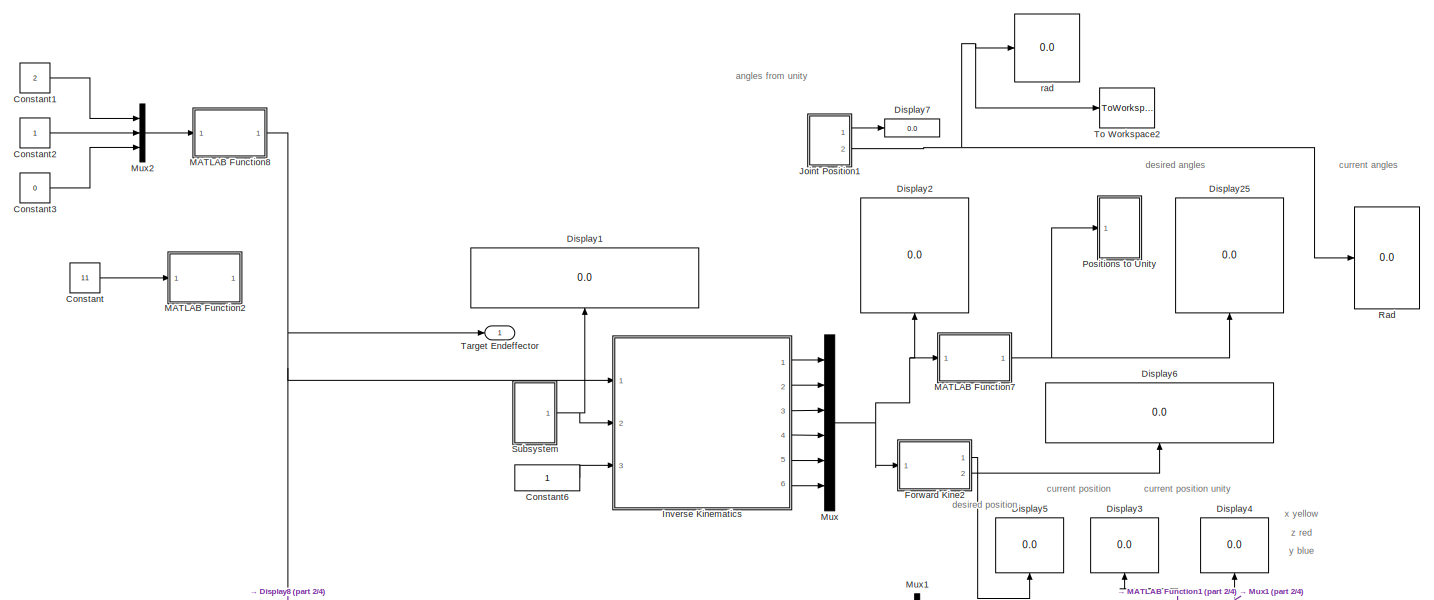
[diagram: root canvas - part 1/4, full width, top band]
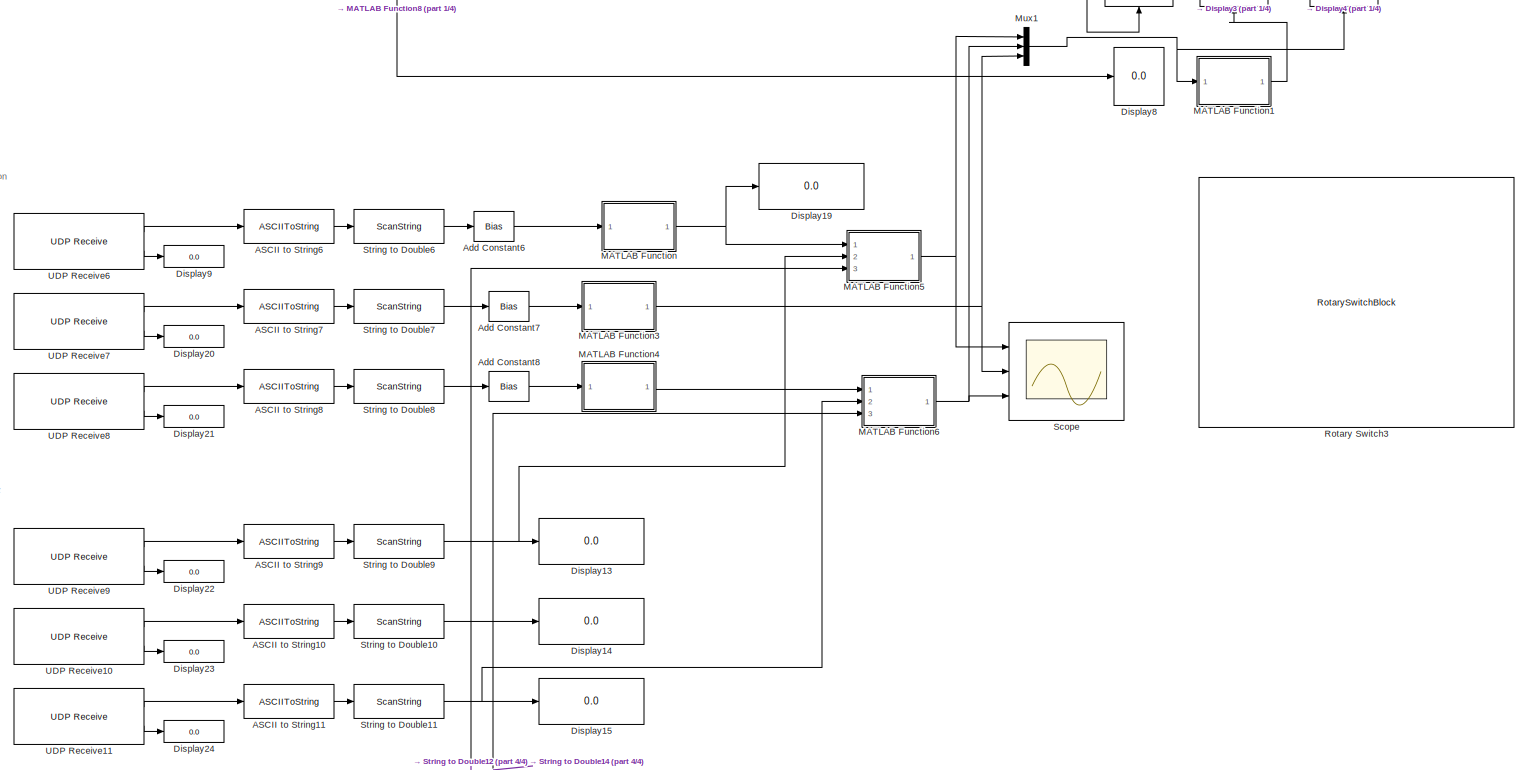
[diagram: root canvas - part 2/4, full width, middle band]
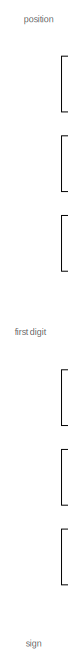
[diagram: root canvas - part 3/4, middle left region]
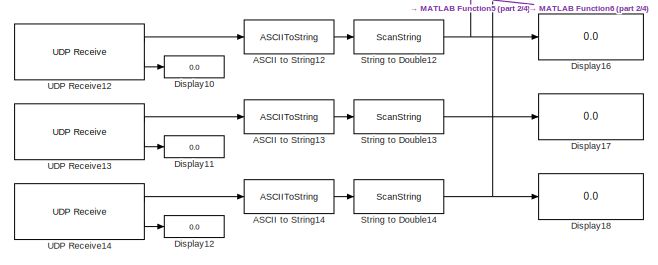
[diagram: root canvas - part 4/4, bottom left region]
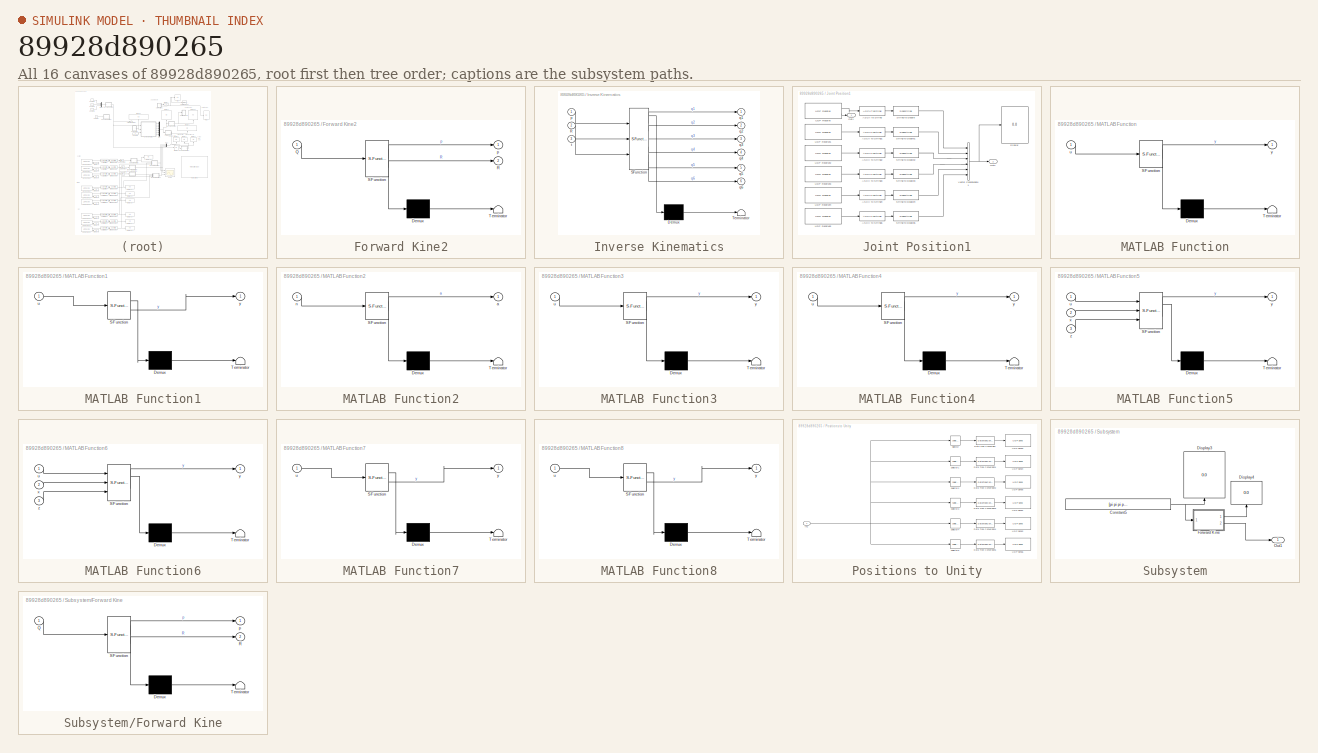
[diagram: thumbnail index - all 16 canvases of the model, root first then tree order]
MODEL slx_89928d890265
KIND model
CONFIG AbsTol = auto
CONFIG EnableMultiTasking = off
CONFIG FixedStep = auto
CONFIG MaxStep = auto
CONFIG MinStep = auto
CONFIG RelTol = 1e-3
CONFIG SampleTimeConstraint = Unconstrained
CONFIG Solver = VariableStepAuto
CONFIG SolverName = VariableStepAuto
CONFIG StartTime = 0.0
CONFIG StopTime = inf
BLOCK [ASCIIToString] ASCII to String10
BLOCK [ASCIIToString] ASCII to String11
BLOCK [ASCIIToString] ASCII to String12
BLOCK [ASCIIToString] ASCII to String13
BLOCK [ASCIIToString] ASCII to String14
BLOCK [ASCIIToString] ASCII to String6
BLOCK [ASCIIToString] ASCII to String7
BLOCK [ASCIIToString] ASCII to String8
BLOCK [ASCIIToString] ASCII to String9
BLOCK [Bias] Add Constant6
  SaturateOnIntegerOverflow = off
BLOCK [Bias] Add Constant7
  SaturateOnIntegerOverflow = off
BLOCK [Bias] Add Constant8
  SaturateOnIntegerOverflow = off
BLOCK [Constant] Constant
  Commented = on
  Value = 11
BLOCK [Constant] Constant1
  Value = 2
BLOCK [Constant] Constant2
BLOCK [Constant] Constant3
  Value = 0
BLOCK [Constant] Constant6
BLOCK [Display] Display1
  Decimation = 1
  Ports = [1]
BLOCK [Display] Display10
  Decimation = 1
  Format = bank
  Ports = [1]
BLOCK [Display] Display11
  Decimation = 1
  Format = bank
  Ports = [1]
BLOCK [Display] Display12
  Decimation = 1
  Format = bank
  Ports = [1]
BLOCK [Display] Display13
  Decimation = 1
  Ports = [1]
BLOCK [Display] Display14
  Decimation = 1
  Ports = [1]
BLOCK [Display] Display15
  Decimation = 1
  Ports = [1]
BLOCK [Display] Display16
  Decimation = 1
  Ports = [1]
BLOCK [Display] Display17
  Decimation = 1
  Ports = [1]
BLOCK [Display] Display18
  Decimation = 1
  Ports = [1]
BLOCK [Display] Display19
  Decimation = 1
  Ports = [1]
BLOCK [Display] Display2
  Decimation = 1
  Ports = [1]
BLOCK [Display] Display20
  Decimation = 1
  Format = bank
  Ports = [1]
BLOCK [Display] Display21
  Decimation = 1
  Format = bank
  Ports = [1]
BLOCK [Display] Display22
  Decimation = 1
  Format = bank
  Ports = [1]
BLOCK [Display] Display23
  Decimation = 1
  Format = bank
  Ports = [1]
BLOCK [Display] Display24
  Decimation = 1
  Format = bank
  Ports = [1]
BLOCK [Display] Display25
  Decimation = 1
  Ports = [1]
BLOCK [Display] Display3
  Decimation = 1
  Ports = [1]
BLOCK [Display] Display4
  Decimation = 1
  Ports = [1]
BLOCK [Display] Display5
  Decimation = 1
  Ports = [1]
BLOCK [Display] Display6
  Decimation = 1
  Ports = [1]
BLOCK [Display] Display7
  Decimation = 1
  Ports = [1]
BLOCK [Display] Display8
  Decimation = 1
  Ports = [1]
BLOCK [Display] Display9
  Decimation = 1
  Format = bank
  Ports = [1]
BLOCK [SubSystem] Forward Kine2
  ErrorFcn = Stateflow.Translate.translate
  PermitHierarchicalResolution = ExplicitOnly
  Ports = [1, 2]
  RequestExecContextInheritance = off
  SFBlockType = MATLAB Function
  TreatAsAtomicUnit = on
BLOCK [Demux] Forward Kine2/ Demux 
  Outputs = 1
  Ports = [1, 1]
BLOCK [S-Function] Forward Kine2/ SFunction 
  EnableBusSupport = on
  FunctionName = sf_sfun
  PortCounts = [1 3]
  Ports = [1, 3]
  SFcnIsStateOwnerBlock = off
  SFunctionDeploymentMode = off
  Tag = Stateflow S-Function InverseKinematics_DirectionalController2018b 1
BLOCK [Terminator] Forward Kine2/ Terminator 
BLOCK [Inport] Forward Kine2/Q
BLOCK [Outport] Forward Kine2/R
  Port = 2
BLOCK [Outport] Forward Kine2/p
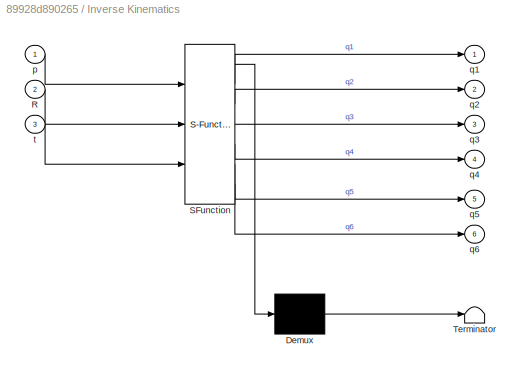
BLOCK [SubSystem] Inverse Kinematics
  ErrorFcn = Stateflow.Translate.translate
  PermitHierarchicalResolution = ExplicitOnly
  Ports = [3, 6]
  RequestExecContextInheritance = off
  SFBlockType = MATLAB Function
  TreatAsAtomicUnit = on
BLOCK [Demux] Inverse Kinematics/ Demux 
  Outputs = 1
  Ports = [1, 1]
BLOCK [S-Function] Inverse Kinematics/ SFunction 
  EnableBusSupport = on
  FunctionName = sf_sfun
  PortCounts = [3 7]
  Ports = [3, 7]
  SFcnIsStateOwnerBlock = off
  SFunctionDeploymentMode = off
  Tag = Stateflow S-Function InverseKinematics_DirectionalController2018b 7
BLOCK [Terminator] Inverse Kinematics/ Terminator 
BLOCK [Inport] Inverse Kinematics/R
  Port = 2
BLOCK [Inport] Inverse Kinematics/p
BLOCK [Outport] Inverse Kinematics/q1
  VectorParamsAs1DForOutWhenUnconnected = off
BLOCK [Outport] Inverse Kinematics/q2
  Port = 2
  VectorParamsAs1DForOutWhenUnconnected = off
BLOCK [Outport] Inverse Kinematics/q3
  Port = 3
  VectorParamsAs1DForOutWhenUnconnected = off
BLOCK [Outport] Inverse Kinematics/q4
  Port = 4
  VectorParamsAs1DForOutWhenUnconnected = off
BLOCK [Outport] Inverse Kinematics/q5
  Port = 5
  VectorParamsAs1DForOutWhenUnconnected = off
BLOCK [Outport] Inverse Kinematics/q6
  Port = 6
  VectorParamsAs1DForOutWhenUnconnected = off
BLOCK [Inport] Inverse Kinematics/t
  Port = 3
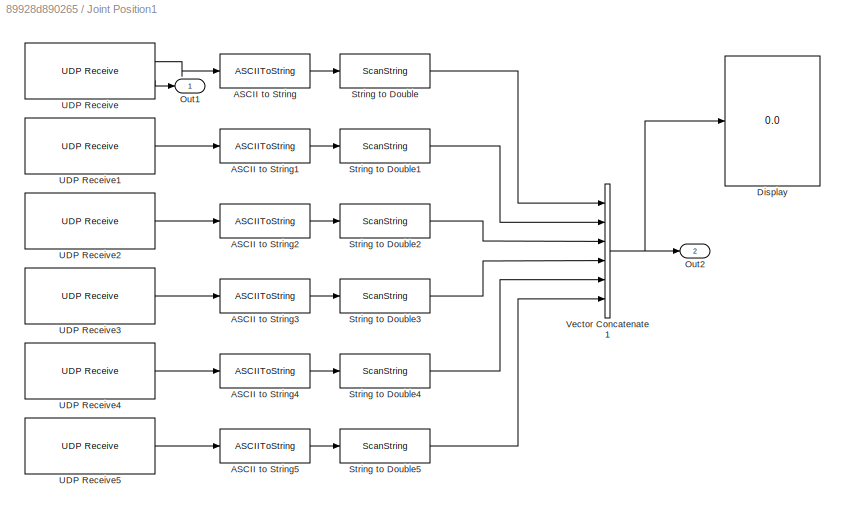
BLOCK [SubSystem] Joint Position1
  Ports = [0, 2]
  RequestExecContextInheritance = off
BLOCK [ASCIIToString] Joint Position1/ASCII to String
BLOCK [ASCIIToString] Joint Position1/ASCII to String1
BLOCK [ASCIIToString] Joint Position1/ASCII to String2
BLOCK [ASCIIToString] Joint Position1/ASCII to String3
BLOCK [ASCIIToString] Joint Position1/ASCII to String4
BLOCK [ASCIIToString] Joint Position1/ASCII to String5
BLOCK [Display] Joint Position1/Display
  Decimation = 1
  Ports = [1]
BLOCK [Outport] Joint Position1/Out1
BLOCK [Outport] Joint Position1/Out2
  Port = 2
BLOCK [ScanString] Joint Position1/String to Double
  Format = "%lf"
  Ports = [1, 1]
BLOCK [ScanString] Joint Position1/String to Double1
  Format = "%lf"
  Ports = [1, 1]
BLOCK [ScanString] Joint Position1/String to Double2
  Format = "%lf"
  Ports = [1, 1]
BLOCK [ScanString] Joint Position1/String to Double3
  Format = "%lf"
  Ports = [1, 1]
BLOCK [ScanString] Joint Position1/String to Double4
  Format = "%lf"
  Ports = [1, 1]
BLOCK [ScanString] Joint Position1/String to Double5
  Format = "%lf"
  Ports = [1, 1]
BLOCK [Reference] Joint Position1/UDP Receive  REF=instrumentlib/UDP Receive
  Ports = [0, 2]
  SourceBlock = instrumentlib/UDP Receive
  SourceProductBaseCode = IC
  SourceType = UDP Receive
BLOCK [Reference] Joint Position1/UDP Receive1  REF=instrumentlib/UDP Receive
  Ports = [0, 1]
  SourceBlock = instrumentlib/UDP Receive
  SourceProductBaseCode = IC
  SourceType = UDP Receive
BLOCK [Reference] Joint Position1/UDP Receive2  REF=instrumentlib/UDP Receive
  Ports = [0, 1]
  SourceBlock = instrumentlib/UDP Receive
  SourceProductBaseCode = IC
  SourceType = UDP Receive
BLOCK [Reference] Joint Position1/UDP Receive3  REF=instrumentlib/UDP Receive
  Ports = [0, 1]
  SourceBlock = instrumentlib/UDP Receive
  SourceProductBaseCode = IC
  SourceType = UDP Receive
BLOCK [Reference] Joint Position1/UDP Receive4  REF=instrumentlib/UDP Receive
  Ports = [0, 1]
  SourceBlock = instrumentlib/UDP Receive
  SourceProductBaseCode = IC
  SourceType = UDP Receive
BLOCK [Reference] Joint Position1/UDP Receive5  REF=instrumentlib/UDP Receive
  Ports = [0, 1]
  SourceBlock = instrumentlib/UDP Receive
  SourceProductBaseCode = IC
  SourceType = UDP Receive
BLOCK [Concatenate] Joint Position1/Vector Concatenate1
  NumInputs = 6
  Ports = [6, 1]
BLOCK [SubSystem] MATLAB Function
  ErrorFcn = Stateflow.Translate.translate
  PermitHierarchicalResolution = ExplicitOnly
  Ports = [1, 1]
  RequestExecContextInheritance = off
  SFBlockType = MATLAB Function
  TreatAsAtomicUnit = on
BLOCK [Demux] MATLAB Function/ Demux 
  Outputs = 1
  Ports = [1, 1]
BLOCK [S-Function] MATLAB Function/ SFunction 
  EnableBusSupport = on
  FunctionName = sf_sfun
  PortCounts = [1 2]
  Ports = [1, 2]
  SFcnIsStateOwnerBlock = off
  SFunctionDeploymentMode = off
  Tag = Stateflow S-Function InverseKinematics_DirectionalController2018b 5
BLOCK [Terminator] MATLAB Function/ Terminator 
BLOCK [Inport] MATLAB Function/u
BLOCK [Outport] MATLAB Function/y
BLOCK [SubSystem] MATLAB Function1
  ErrorFcn = Stateflow.Translate.translate
  PermitHierarchicalResolution = ExplicitOnly
  Ports = [1, 1]
  RequestExecContextInheritance = off
  SFBlockType = MATLAB Function
  TreatAsAtomicUnit = on
BLOCK [Demux] MATLAB Function1/ Demux 
  Outputs = 1
  Ports = [1, 1]
BLOCK [S-Function] MATLAB Function1/ SFunction 
  EnableBusSupport = on
  FunctionName = sf_sfun
  PortCounts = [1 2]
  Ports = [1, 2]
  SFcnIsStateOwnerBlock = off
  SFunctionDeploymentMode = off
  Tag = Stateflow S-Function InverseKinematics_DirectionalController2018b 4
BLOCK [Terminator] MATLAB Function1/ Terminator 
BLOCK [Inport] MATLAB Function1/u
BLOCK [Outport] MATLAB Function1/y
BLOCK [SubSystem] MATLAB Function2
  Commented = on
  ErrorFcn = Stateflow.Translate.translate
  PermitHierarchicalResolution = ExplicitOnly
  Ports = [1, 1]
  RequestExecContextInheritance = off
  SFBlockType = MATLAB Function
  TreatAsAtomicUnit = on
BLOCK [Demux] MATLAB Function2/ Demux 
  Outputs = 1
  Ports = [1, 1]
BLOCK [S-Function] MATLAB Function2/ SFunction 
  EnableBusSupport = on
  FunctionName = sf_sfun
  PortCounts = [1 2]
  Ports = [1, 2]
  SFcnIsStateOwnerBlock = off
  SFunctionDeploymentMode = off
  Tag = Stateflow S-Function 3
BLOCK [Terminator] MATLAB Function2/ Terminator 
BLOCK [Outport] MATLAB Function2/a
BLOCK [Inport] MATLAB Function2/n
BLOCK [SubSystem] MATLAB Function3
  ErrorFcn = Stateflow.Translate.translate
  PermitHierarchicalResolution = ExplicitOnly
  Ports = [1, 1]
  RequestExecContextInheritance = off
  SFBlockType = MATLAB Function
  TreatAsAtomicUnit = on
BLOCK [Demux] MATLAB Function3/ Demux 
  Outputs = 1
  Ports = [1, 1]
BLOCK [S-Function] MATLAB Function3/ SFunction 
  EnableBusSupport = on
  FunctionName = sf_sfun
  PortCounts = [1 2]
  Ports = [1, 2]
  SFcnIsStateOwnerBlock = off
  SFunctionDeploymentMode = off
  Tag = Stateflow S-Function InverseKinematics_DirectionalController2018b 6
BLOCK [Terminator] MATLAB Function3/ Terminator 
BLOCK [Inport] MATLAB Function3/u
BLOCK [Outport] MATLAB Function3/y
BLOCK [SubSystem] MATLAB Function4
  ErrorFcn = Stateflow.Translate.translate
  PermitHierarchicalResolution = ExplicitOnly
  Ports = [1, 1]
  RequestExecContextInheritance = off
  SFBlockType = MATLAB Function
  TreatAsAtomicUnit = on
BLOCK [Demux] MATLAB Function4/ Demux 
  Outputs = 1
  Ports = [1, 1]
BLOCK [S-Function] MATLAB Function4/ SFunction 
  EnableBusSupport = on
  FunctionName = sf_sfun
  PortCounts = [1 2]
  Ports = [1, 2]
  SFcnIsStateOwnerBlock = off
  SFunctionDeploymentMode = off
  Tag = Stateflow S-Function InverseKinematics_DirectionalController2018b 8
BLOCK [Terminator] MATLAB Function4/ Terminator 
BLOCK [Inport] MATLAB Function4/u
BLOCK [Outport] MATLAB Function4/y
BLOCK [SubSystem] MATLAB Function5
  ErrorFcn = Stateflow.Translate.translate
  PermitHierarchicalResolution = ExplicitOnly
  Ports = [3, 1]
  RequestExecContextInheritance = off
  SFBlockType = MATLAB Function
  TreatAsAtomicUnit = on
BLOCK [Demux] MATLAB Function5/ Demux 
  Outputs = 1
  Ports = [1, 1]
BLOCK [S-Function] MATLAB Function5/ SFunction 
  EnableBusSupport = on
  FunctionName = sf_sfun
  PortCounts = [3 2]
  Ports = [3, 2]
  SFcnIsStateOwnerBlock = off
  SFunctionDeploymentMode = off
  Tag = Stateflow S-Function InverseKinematics_DirectionalController2018b 9
BLOCK [Terminator] MATLAB Function5/ Terminator 
BLOCK [Inport] MATLAB Function5/u
BLOCK [Inport] MATLAB Function5/x
  Port = 2
BLOCK [Outport] MATLAB Function5/y
BLOCK [Inport] MATLAB Function5/z
  Port = 3
BLOCK [SubSystem] MATLAB Function6
  ErrorFcn = Stateflow.Translate.translate
  PermitHierarchicalResolution = ExplicitOnly
  Ports = [3, 1]
  RequestExecContextInheritance = off
  SFBlockType = MATLAB Function
  TreatAsAtomicUnit = on
BLOCK [Demux] MATLAB Function6/ Demux 
  Outputs = 1
  Ports = [1, 1]
BLOCK [S-Function] MATLAB Function6/ SFunction 
  EnableBusSupport = on
  FunctionName = sf_sfun
  PortCounts = [3 2]
  Ports = [3, 2]
  SFcnIsStateOwnerBlock = off
  SFunctionDeploymentMode = off
  Tag = Stateflow S-Function InverseKinematics_DirectionalController2018b 10
BLOCK [Terminator] MATLAB Function6/ Terminator 
BLOCK [Inport] MATLAB Function6/u
BLOCK [Inport] MATLAB Function6/x
  Port = 2
BLOCK [Outport] MATLAB Function6/y
BLOCK [Inport] MATLAB Function6/z
  Port = 3
BLOCK [SubSystem] MATLAB Function7
  ErrorFcn = Stateflow.Translate.translate
  PermitHierarchicalResolution = ExplicitOnly
  Ports = [1, 1]
  RequestExecContextInheritance = off
  SFBlockType = MATLAB Function
  TreatAsAtomicUnit = on
BLOCK [Demux] MATLAB Function7/ Demux 
  Outputs = 1
  Ports = [1, 1]
BLOCK [S-Function] MATLAB Function7/ SFunction 
  EnableBusSupport = on
  FunctionName = sf_sfun
  PortCounts = [1 2]
  Ports = [1, 2]
  SFcnIsStateOwnerBlock = off
  SFunctionDeploymentMode = off
  Tag = Stateflow S-Function InverseKinematics_DirectionalController2018b 11
BLOCK [Terminator] MATLAB Function7/ Terminator 
BLOCK [Inport] MATLAB Function7/u
BLOCK [Outport] MATLAB Function7/y
BLOCK [SubSystem] MATLAB Function8
  ErrorFcn = Stateflow.Translate.translate
  PermitHierarchicalResolution = ExplicitOnly
  Ports = [1, 1]
  RequestExecContextInheritance = off
  SFBlockType = MATLAB Function
  TreatAsAtomicUnit = on
BLOCK [Demux] MATLAB Function8/ Demux 
  Outputs = 1
  Ports = [1, 1]
BLOCK [S-Function] MATLAB Function8/ SFunction 
  EnableBusSupport = on
  FunctionName = sf_sfun
  PortCounts = [1 2]
  Ports = [1, 2]
  SFcnIsStateOwnerBlock = off
  SFunctionDeploymentMode = off
  Tag = Stateflow S-Function InverseKinematics_DirectionalController2018b 12
BLOCK [Terminator] MATLAB Function8/ Terminator 
BLOCK [Inport] MATLAB Function8/u
BLOCK [Outport] MATLAB Function8/y
BLOCK [Mux] Mux
  DisplayOption = signals
  Inputs = 6
  Ports = [6, 1]
BLOCK [Mux] Mux1
  DisplayOption = bar
  Inputs = 3
  Ports = [3, 1]
BLOCK [Mux] Mux2
  DisplayOption = bar
  Inputs = 3
  Ports = [3, 1]
BLOCK [SubSystem] Positions to Unity
  Ports = [1]
  RequestExecContextInheritance = off
BLOCK [DataTypeConversion] Positions to Unity/Data Type Conversion
  ConvertRealWorld = Stored Integer (SI)
  OutDataTypeStr = double
  RndMeth = Floor
  SaturateOnIntegerOverflow = off
BLOCK [DataTypeConversion] Positions to Unity/Data Type Conversion1
  ConvertRealWorld = Stored Integer (SI)
  OutDataTypeStr = double
  RndMeth = Floor
  SaturateOnIntegerOverflow = off
BLOCK [DataTypeConversion] Positions to Unity/Data Type Conversion2
  ConvertRealWorld = Stored Integer (SI)
  OutDataTypeStr = double
  RndMeth = Floor
  SaturateOnIntegerOverflow = off
BLOCK [DataTypeConversion] Positions to Unity/Data Type Conversion3
  ConvertRealWorld = Stored Integer (SI)
  OutDataTypeStr = double
  RndMeth = Floor
  SaturateOnIntegerOverflow = off
BLOCK [DataTypeConversion] Positions to Unity/Data Type Conversion4
  ConvertRealWorld = Stored Integer (SI)
  OutDataTypeStr = double
  RndMeth = Floor
  SaturateOnIntegerOverflow = off
BLOCK [DataTypeConversion] Positions to Unity/Data Type Conversion5
  ConvertRealWorld = Stored Integer (SI)
  OutDataTypeStr = double
  RndMeth = Floor
  SaturateOnIntegerOverflow = off
BLOCK [Inport] Positions to Unity/In1
BLOCK [Selector] Positions to Unity/Selector
  IndexOptions = Index vector (dialog)
  Indices = [1]
  InputPortWidth = 6
  OutputSizes = 1
  Ports = [1, 1]
BLOCK [Selector] Positions to Unity/Selector1
  IndexOptions = Index vector (dialog)
  Indices = [2]
  InputPortWidth = 6
  OutputSizes = 1
  Ports = [1, 1]
BLOCK [Selector] Positions to Unity/Selector2
  IndexOptions = Index vector (dialog)
  Indices = [3]
  InputPortWidth = 6
  OutputSizes = 1
  Ports = [1, 1]
BLOCK [Selector] Positions to Unity/Selector3
  IndexOptions = Index vector (dialog)
  Indices = [4]
  InputPortWidth = 6
  OutputSizes = 1
  Ports = [1, 1]
BLOCK [Selector] Positions to Unity/Selector4
  IndexOptions = Index vector (dialog)
  Indices = [5]
  InputPortWidth = 6
  OutputSizes = 1
  Ports = [1, 1]
BLOCK [Selector] Positions to Unity/Selector5
  IndexOptions = Index vector (dialog)
  Indices = [6]
  InputPortWidth = 6
  OutputSizes = 1
  Ports = [1, 1]
BLOCK [Reference] Positions to Unity/UDP Send1  REF=dspnetwork/UDP Send
  Ports = [1]
  SourceBlock = dspnetwork/UDP Send
  SourceProductBaseCode = SL
  SourceType = UDP Send
BLOCK [Reference] Positions to Unity/UDP Send2  REF=dspnetwork/UDP Send
  Ports = [1]
  SourceBlock = dspnetwork/UDP Send
  SourceProductBaseCode = SL
  SourceType = UDP Send
BLOCK [Reference] Positions to Unity/UDP Send3  REF=dspnetwork/UDP Send
  Ports = [1]
  SourceBlock = dspnetwork/UDP Send
  SourceProductBaseCode = SL
  SourceType = UDP Send
BLOCK [Reference] Positions to Unity/UDP Send4  REF=dspnetwork/UDP Send
  Ports = [1]
  SourceBlock = dspnetwork/UDP Send
  SourceProductBaseCode = SL
  SourceType = UDP Send
BLOCK [Reference] Positions to Unity/UDP Send5  REF=dspnetwork/UDP Send
  Ports = [1]
  SourceBlock = dspnetwork/UDP Send
  SourceProductBaseCode = SL
  SourceType = UDP Send
BLOCK [Reference] Positions to Unity/UDP Send6  REF=dspnetwork/UDP Send
  Ports = [1]
  SourceBlock = dspnetwork/UDP Send
  SourceProductBaseCode = SL
  SourceType = UDP Send
BLOCK [Display] Rad
  Decimation = 1
  Ports = [1]
BLOCK [RotarySwitchBlock] Rotary Switch3
  WebBlockId = 399
BLOCK [Scope] Scope
  Floating = off
  NumInputPorts = 3
  Ports = [3]
  ScopeSpecificationString = Simulink.scopes.TimeScopeBlockCfg('CurrentConfiguration', extmgr.ConfigurationSet(extmgr.Configuration('Core','General UI',true,'DisplayFullSourceName',true),extmgr.Configuration('Core','Source UI',true),extmgr.Configuration('Sources','WiredSimulink',true),extmgr.Configuration('Visuals','Time Domain',true,'SerializedDisplays',{struct('MinYLimReal','-6.13076','MaxYLimReal','6.79086','YLabelReal',''...<+1620ch>
BLOCK [ScanString] String to Double10
  Format = "%lf"
  Ports = [1, 1]
BLOCK [ScanString] String to Double11
  Format = "%lf"
  Ports = [1, 1]
BLOCK [ScanString] String to Double12
  Format = "%lf"
  Ports = [1, 1]
BLOCK [ScanString] String to Double13
  Format = "%lf"
  Ports = [1, 1]
BLOCK [ScanString] String to Double14
  Format = "%lf"
  Ports = [1, 1]
BLOCK [ScanString] String to Double6
  Format = "%lf"
  Ports = [1, 1]
BLOCK [ScanString] String to Double7
  Format = "%lf"
  Ports = [1, 1]
BLOCK [ScanString] String to Double8
  Format = "%lf"
  Ports = [1, 1]
BLOCK [ScanString] String to Double9
  Format = "%lf"
  Ports = [1, 1]
BLOCK [SubSystem] Subsystem
  Ports = [0, 1]
  RequestExecContextInheritance = off
BLOCK [Constant] Subsystem/Constant5
  Value = [pi pi pi pi pi pi]
BLOCK [Display] Subsystem/Display3
  Decimation = 1
  Ports = [1]
BLOCK [Display] Subsystem/Display4
  Decimation = 1
  Ports = [1]
BLOCK [SubSystem] Subsystem/Forward Kine
  ErrorFcn = Stateflow.Translate.translate
  PermitHierarchicalResolution = ExplicitOnly
  Ports = [1, 2]
  RequestExecContextInheritance = off
  SFBlockType = MATLAB Function
  TreatAsAtomicUnit = on
BLOCK [Demux] Subsystem/Forward Kine/ Demux 
  Outputs = 1
  Ports = [1, 1]
BLOCK [S-Function] Subsystem/Forward Kine/ SFunction 
  EnableBusSupport = on
  FunctionName = sf_sfun
  PortCounts = [1 3]
  Ports = [1, 3]
  SFcnIsStateOwnerBlock = off
  SFunctionDeploymentMode = off
  Tag = Stateflow S-Function InverseKinematics_DirectionalController2018b 2
BLOCK [Terminator] Subsystem/Forward Kine/ Terminator 
BLOCK [Inport] Subsystem/Forward Kine/Q
BLOCK [Outport] Subsystem/Forward Kine/R
  Port = 2
BLOCK [Outport] Subsystem/Forward Kine/p
BLOCK [Outport] Subsystem/Out1
BLOCK [Outport] Target Endeffector
BLOCK [ToWorkspace] To Workspace2
  FixptAsFi = on
  MaxDataPoints = inf
  Ports = [1]
  SampleTime = -1
  Save2DSignal = 2-D array (concatenate along first dimension)
  VariableName = Angles
BLOCK [Reference] UDP Receive10  REF=instrumentlib/UDP Receive
  Ports = [0, 2]
  SourceBlock = instrumentlib/UDP Receive
  SourceProductBaseCode = IC
  SourceType = UDP Receive
BLOCK [Reference] UDP Receive11  REF=instrumentlib/UDP Receive
  Ports = [0, 2]
  SourceBlock = instrumentlib/UDP Receive
  SourceProductBaseCode = IC
  SourceType = UDP Receive
BLOCK [Reference] UDP Receive12  REF=instrumentlib/UDP Receive
  Ports = [0, 2]
  SourceBlock = instrumentlib/UDP Receive
  SourceProductBaseCode = IC
  SourceType = UDP Receive
BLOCK [Reference] UDP Receive13  REF=instrumentlib/UDP Receive
  Ports = [0, 2]
  SourceBlock = instrumentlib/UDP Receive
  SourceProductBaseCode = IC
  SourceType = UDP Receive
BLOCK [Reference] UDP Receive14  REF=instrumentlib/UDP Receive
  Ports = [0, 2]
  SourceBlock = instrumentlib/UDP Receive
  SourceProductBaseCode = IC
  SourceType = UDP Receive
BLOCK [Reference] UDP Receive6  REF=instrumentlib/UDP Receive
  Ports = [0, 2]
  SourceBlock = instrumentlib/UDP Receive
  SourceProductBaseCode = IC
  SourceType = UDP Receive
BLOCK [Reference] UDP Receive7  REF=instrumentlib/UDP Receive
  Ports = [0, 2]
  SourceBlock = instrumentlib/UDP Receive
  SourceProductBaseCode = IC
  SourceType = UDP Receive
BLOCK [Reference] UDP Receive8  REF=instrumentlib/UDP Receive
  Ports = [0, 2]
  SourceBlock = instrumentlib/UDP Receive
  SourceProductBaseCode = IC
  SourceType = UDP Receive
BLOCK [Reference] UDP Receive9  REF=instrumentlib/UDP Receive
  Ports = [0, 2]
  SourceBlock = instrumentlib/UDP Receive
  SourceProductBaseCode = IC
  SourceType = UDP Receive
BLOCK [Display] rad
  Decimation = 1
  Ports = [1]
ANNOTATION (root): angles from unity
ANNOTATION (root): current angles
ANNOTATION (root): current position
ANNOTATION (root): current position unity
ANNOTATION (root): desired angles
ANNOTATION (root): desired position
ANNOTATION (root): first digit
ANNOTATION (root): position
ANNOTATION (root): sign
ANNOTATION (root): x yellow
ANNOTATION (root): y blue
ANNOTATION (root): z red
LINE ASCII to String10:1 -> String to Double10:1
LINE ASCII to String11:1 -> String to Double11:1
LINE ASCII to String12:1 -> String to Double12:1
LINE ASCII to String13:1 -> String to Double13:1
LINE ASCII to String14:1 -> String to Double14:1
LINE ASCII to String6:1 -> String to Double6:1
LINE ASCII to String7:1 -> String to Double7:1
LINE ASCII to String8:1 -> String to Double8:1
LINE ASCII to String9:1 -> String to Double9:1
LINE Add Constant6:1 -> MATLAB Function:1
LINE Add Constant7:1 -> MATLAB Function3:1
LINE Add Constant8:1 -> MATLAB Function4:1
LINE Constant1:1 -> Mux2:1
LINE Constant2:1 -> Mux2:2
LINE Constant3:1 -> Mux2:3
LINE Constant6:1 -> Inverse Kinematics:3
LINE Constant:1 -> MATLAB Function2:1
LINE Forward Kine2:1 -> Display5:1
LINE Forward Kine2:2 -> Display6:1
LINE Inverse Kinematics:1 -> Mux:1
LINE Inverse Kinematics:2 -> Mux:2
LINE Inverse Kinematics:3 -> Mux:3
LINE Inverse Kinematics:4 -> Mux:4
LINE Inverse Kinematics:5 -> Mux:5
LINE Inverse Kinematics:6 -> Mux:6
LINE Joint Position1/ASCII to String1:1 -> Joint Position1/String to Double1:1
LINE Joint Position1/ASCII to String2:1 -> Joint Position1/String to Double2:1
LINE Joint Position1/ASCII to String3:1 -> Joint Position1/String to Double3:1
LINE Joint Position1/ASCII to String4:1 -> Joint Position1/String to Double4:1
LINE Joint Position1/ASCII to String5:1 -> Joint Position1/String to Double5:1
LINE Joint Position1/ASCII to String:1 -> Joint Position1/String to Double:1
LINE Joint Position1/String to Double1:1 -> Joint Position1/Vector Concatenate1:2
LINE Joint Position1/String to Double2:1 -> Joint Position1/Vector Concatenate1:3
LINE Joint Position1/String to Double3:1 -> Joint Position1/Vector Concatenate1:4
LINE Joint Position1/String to Double4:1 -> Joint Position1/Vector Concatenate1:5
LINE Joint Position1/String to Double5:1 -> Joint Position1/Vector Concatenate1:6
LINE Joint Position1/String to Double:1 -> Joint Position1/Vector Concatenate1:1
LINE Joint Position1/UDP Receive1:1 -> Joint Position1/ASCII to String1:1
LINE Joint Position1/UDP Receive2:1 -> Joint Position1/ASCII to String2:1
LINE Joint Position1/UDP Receive3:1 -> Joint Position1/ASCII to String3:1
LINE Joint Position1/UDP Receive4:1 -> Joint Position1/ASCII to String4:1
LINE Joint Position1/UDP Receive5:1 -> Joint Position1/ASCII to String5:1
LINE Joint Position1/UDP Receive:1 -> Joint Position1/ASCII to String:1
LINE Joint Position1/UDP Receive:2 -> Joint Position1/Out1:1
NET Joint Position1/Vector Concatenate1:1 -> Joint Position1/Display:1, Joint Position1/Out2:1
LINE Joint Position1:1 -> Display7:1
NET Joint Position1:2 -> Rad:1, To Workspace2:1, rad:1
LINE MATLAB Function1:1 -> Display3:1
NET MATLAB Function3:1 -> Mux1:3, Scope:2
LINE MATLAB Function4:1 -> MATLAB Function6:1
NET MATLAB Function5:1 -> Mux1:1, Scope:1
NET MATLAB Function6:1 -> Mux1:2, Scope:3
NET MATLAB Function7:1 -> Display25:1, Positions to Unity:1
NET MATLAB Function8:1 -> Display8:1, Inverse Kinematics:1, Target Endeffector:1
NET MATLAB Function:1 -> Display19:1, MATLAB Function5:1
NET Mux1:1 -> Display4:1, MATLAB Function1:1
LINE Mux2:1 -> MATLAB Function8:1
NET Mux:1 -> Display2:1, Forward Kine2:1, MATLAB Function7:1
LINE Positions to Unity/Data Type Conversion1:1 -> Positions to Unity/UDP Send4:1
LINE Positions to Unity/Data Type Conversion2:1 -> Positions to Unity/UDP Send5:1
LINE Positions to Unity/Data Type Conversion3:1 -> Positions to Unity/UDP Send1:1
LINE Positions to Unity/Data Type Conversion4:1 -> Positions to Unity/UDP Send2:1
LINE Positions to Unity/Data Type Conversion5:1 -> Positions to Unity/UDP Send6:1
LINE Positions to Unity/Data Type Conversion:1 -> Positions to Unity/UDP Send3:1
NET Positions to Unity/In1:1 -> Positions to Unity/Selector1:1, Positions to Unity/Selector2:1, Positions to Unity/Selector3:1, Positions to Unity/Selector4:1, Positions to Unity/Selector5:1, Positions to Unity/Selector:1
LINE Positions to Unity/Selector1:1 -> Positions to Unity/Data Type Conversion1:1
LINE Positions to Unity/Selector2:1 -> Positions to Unity/Data Type Conversion2:1
LINE Positions to Unity/Selector3:1 -> Positions to Unity/Data Type Conversion3:1
LINE Positions to Unity/Selector4:1 -> Positions to Unity/Data Type Conversion4:1
LINE Positions to Unity/Selector5:1 -> Positions to Unity/Data Type Conversion5:1
LINE Positions to Unity/Selector:1 -> Positions to Unity/Data Type Conversion:1
LINE String to Double10:1 -> Display14:1
NET String to Double11:1 -> Display15:1, MATLAB Function6:2
NET String to Double12:1 -> Display16:1, MATLAB Function5:3
LINE String to Double13:1 -> Display17:1
NET String to Double14:1 -> Display18:1, MATLAB Function6:3
LINE String to Double6:1 -> Add Constant6:1
LINE String to Double7:1 -> Add Constant7:1
LINE String to Double8:1 -> Add Constant8:1
NET String to Double9:1 -> Display13:1, MATLAB Function5:2
NET Subsystem/Constant5:1 -> Subsystem/Display3:1, Subsystem/Forward Kine:1
LINE Subsystem/Forward Kine:1 -> Subsystem/Display4:1
LINE Subsystem/Forward Kine:2 -> Subsystem/Out1:1
NET Subsystem:1 -> Display1:1, Inverse Kinematics:2
LINE UDP Receive10:1 -> ASCII to String10:1
LINE UDP Receive10:2 -> Display23:1
LINE UDP Receive11:1 -> ASCII to String11:1
LINE UDP Receive11:2 -> Display24:1
LINE UDP Receive12:1 -> ASCII to String12:1
LINE UDP Receive12:2 -> Display10:1
LINE UDP Receive13:1 -> ASCII to String13:1
LINE UDP Receive13:2 -> Display11:1
LINE UDP Receive14:1 -> ASCII to String14:1
LINE UDP Receive14:2 -> Display12:1
LINE UDP Receive6:1 -> ASCII to String6:1
LINE UDP Receive6:2 -> Display9:1
LINE UDP Receive7:1 -> ASCII to String7:1
LINE UDP Receive7:2 -> Display20:1
LINE UDP Receive8:1 -> ASCII to String8:1
LINE UDP Receive8:2 -> Display21:1
LINE UDP Receive9:1 -> ASCII to String9:1
LINE UDP Receive9:2 -> Display22:1
note: NET lines group one-source signal fan-out (src -> all destinations, sorted); 1:1 wires keep LINE
CHART Forward Kine2 states=1 transitions=1
  STATE_LABEL 'eML_blk_kernel()'
  STATE_LABEL 'SCRIPT:\nfunction [p,R] = fcn(Q)\n\n%Inputs\nTh_1=Q(1);\nTh_2=Q(2);\nTh_3=Q(3);\nTh_4=Q(4);\nTh_5=Q(5);\nTh_6=Q(6);\n\n% \n% Th_1=-1.6851;\n% Th_2=-0.7011;\n% Th_3=-3.3627;\n% Th_4=0.3119;\n% Th_5=1.7655;\n% Th_6=-1.0709;\n\ne2=0.0070;\nD1=0.2755;\nD2=0.2900;\nD3=0.1233;\nD4=0.0741;\nD5=0.0741;\nD6=0.1600;\naa=(30*pi)/180;\naa2=aa*2;\naa2d=rad2deg(aa2);\nsa=sin(aa);\ns2a=sin(2*aa);\nd4b=D3+(sa/s2a)*D4;\nd5b=(sa/s2a)*D4+(sa/s2a)*...<+1931ch>'
CHART Subsystem/Forward Kine states=1 transitions=1
  STATE_LABEL 'eML_blk_kernel()'
  STATE_LABEL 'SCRIPT:\nfunction [p,R] = fcn(Q)\n\n%Inputs\nTh_1=Q(1);\nTh_2=Q(2);\nTh_3=Q(3);\nTh_4=Q(4);\nTh_5=Q(5);\nTh_6=Q(6);\n\n% \n% Th_1=-1.6851;\n% Th_2=-0.7011;\n% Th_3=-3.3627;\n% Th_4=0.3119;\n% Th_5=1.7655;\n% Th_6=-1.0709;\n\ne2=0.0070;\nD1=0.2755;\nD2=0.2900;\nD3=0.1233;\nD4=0.0741;\nD5=0.0741;\nD6=0.1600;\naa=(30*pi)/180;\naa2=aa*2;\naa2d=rad2deg(aa2);\nsa=sin(aa);\ns2a=sin(2*aa);\nd4b=D3+(sa/s2a)*D4;\nd5b=(sa/s2a)*D4+(sa/s2a)*...<+1931ch>'
CHART MATLAB Function2 states=1 transitions=1
  STATE_LABEL 'eML_blk_kernel()'
  STATE_LABEL "SCRIPT:\nfunction a = Pos(n)\n% n = input('Enter a number: ');\n  \nswitch n\n  \n    case 11\n        a=[0.2,-0.1,-0.3]; % up\n    case 21\n        a=[-0.01,-0.1,-0.3]; % down\n    case 31\n        a=[0.2,0.27,-0.3]; % in\n    case 41\n        a=[0,0,0.1]; % out\n    case 51\n        a=[-0.2,0.1,-0.2]; % left\n    case 61\n        a=[0.2,-0.1,0.2]; % right\n    case 71\n        a=[0.2,-0.1,-0.3]; % rest\n    otherwi...<+386ch>"
CHART MATLAB Function1 states=1 transitions=1
  STATE_LABEL 'eML_blk_kernel()'
  STATE_LABEL 'SCRIPT:\nfunction y = fcn(u)\n\nx = [u(1); -u(2); u(3)];\ny = x/29;\n%y = -t/29;\n%y = z/29;'
CHART MATLAB Function states=1 transitions=1
  STATE_LABEL 'eML_blk_kernel()'
  STATE_LABEL "SCRIPT:\nfunction y = fcn(u)\n\nif u > 1\n    c = sprintf('%f', u);\n    y = str2double(c(2:6));\n    %disp(y);\nelse\n    y = u;\nend"
CHART MATLAB Function3 states=1 transitions=1
  STATE_LABEL 'eML_blk_kernel()'
  STATE_LABEL "SCRIPT:\nfunction y = fcn(u)\n\nif u > 10\n    c = sprintf('%f', u);\n    y = str2double(c(2:6));\n    disp(y);\nelse\n    y = u;\nend"
CHART Inverse Kinematics states=1 transitions=1
  STATE_LABEL 'eML_blk_kernel()'
  STATE_LABEL 'SCRIPT:\nfunction [q1,q2,q3,q4,q5,q6] = ik_jaco(p,R,t)\n%%INPUT \n\n%Position values from Example 7.1 research paper\n%p=[x(1);y(1);z(1)];\n%R=[1,0,0;0,0,-1;0,1,0]; %in the simulink model input this as a constant orientation\n\n% ik_jaco determines the inverse kinematics of first version the 6-dof Jaco Robot \n%   The input parameters are the vector p and the matrix R. The procedure\n%   taken to determine ...<+3608ch>'
CHART MATLAB Function4 states=1 transitions=1
  STATE_LABEL 'eML_blk_kernel()'
  STATE_LABEL "SCRIPT:\nfunction y = fcn(u)\n\nif u > 1\n    c = sprintf('%f', u);\n    y = str2double(c(2:6));\n    disp(y);\nelse\n    y = u;\nend"
CHART MATLAB Function5 states=1 transitions=1
  STATE_LABEL 'eML_blk_kernel()'
  STATE_LABEL "SCRIPT:\nfunction y = fcn(u, x, z)\n\nif z == 1\n    if u < 1\n        %c = sprintf('%f', u);\n        y = x + u;\n        disp(y);\n    else\n        y = u;\n    end\nelse\n    y = u;\nend"
CHART MATLAB Function6 states=1 transitions=1
  STATE_LABEL 'eML_blk_kernel()'
  STATE_LABEL "SCRIPT:\nfunction y = fcn(u, x, z)\n\nif z == 1\n    if u < 1\n        %c = sprintf('%f', u);\n        y = x + u;\n        disp(y);\n    else\n        y = u;\n    end\nelse\n    y = u;\nend"
CHART MATLAB Function7 states=1 transitions=1
  STATE_LABEL 'eML_blk_kernel()'
  STATE_LABEL 'SCRIPT:\nfunction y = fcn(u)\n\n%x = [u(1); -u(2); u(3)];\n%y = x/29;\n\n%\n%y = zeros(length(u));\n\ny = [0,0,0,0,0,0];\n\nfor i = 1:length(u)\n    if u(i) < 0\n        y(i) = u(i) + 2*pi;\n    else\n        y(i) = u(i);\n    end\nend\n'
CHART MATLAB Function8 states=1 transitions=1
  STATE_LABEL 'eML_blk_kernel()'
  STATE_LABEL 'SCRIPT:\nfunction y = fcn(u)\n\nx = [u(1); u(2); u(3)];\ny = x/29;'
